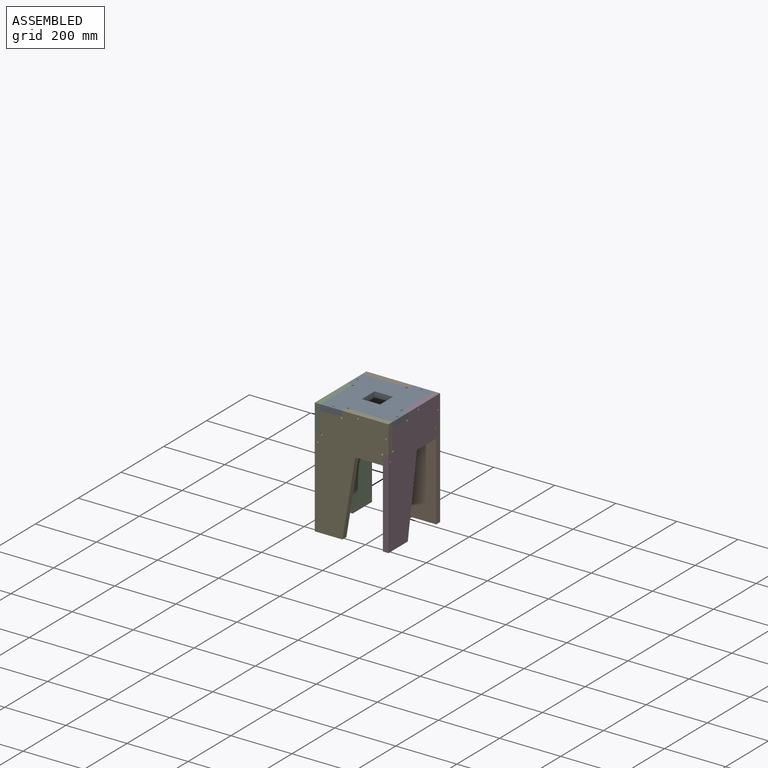
[diagram: assembled view]
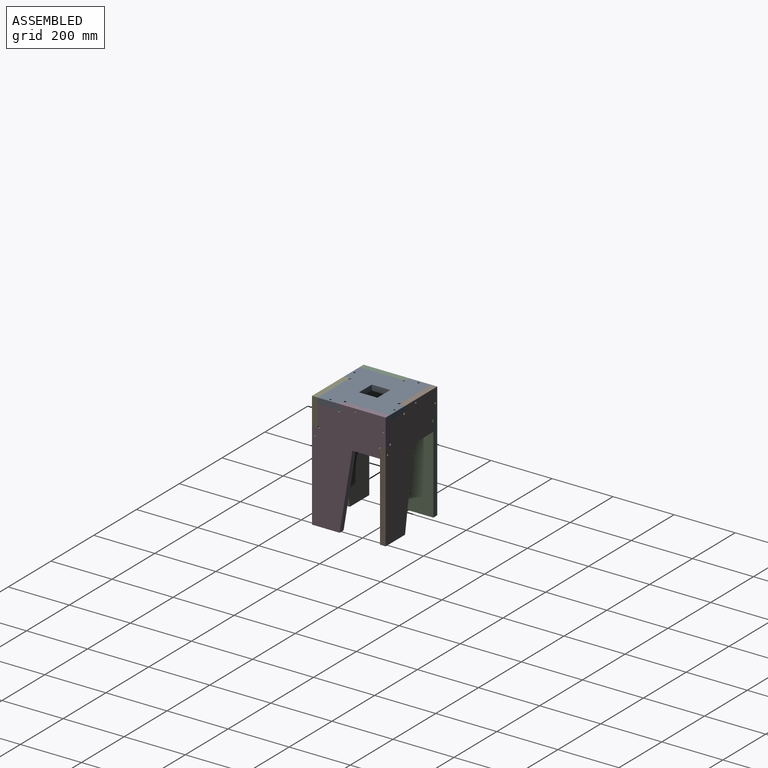
[diagram: assembled view, second angle]
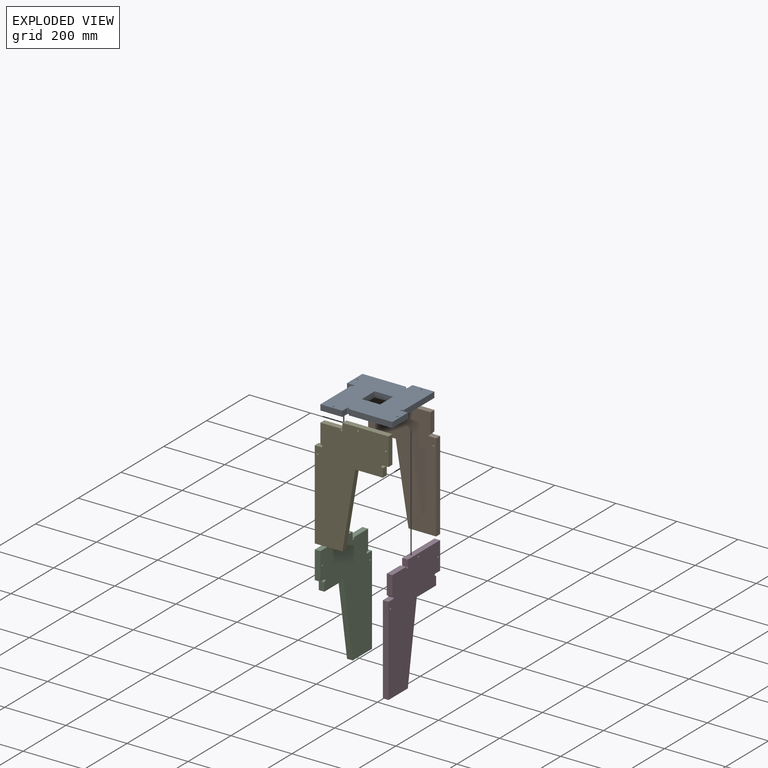
[diagram: exploded view]
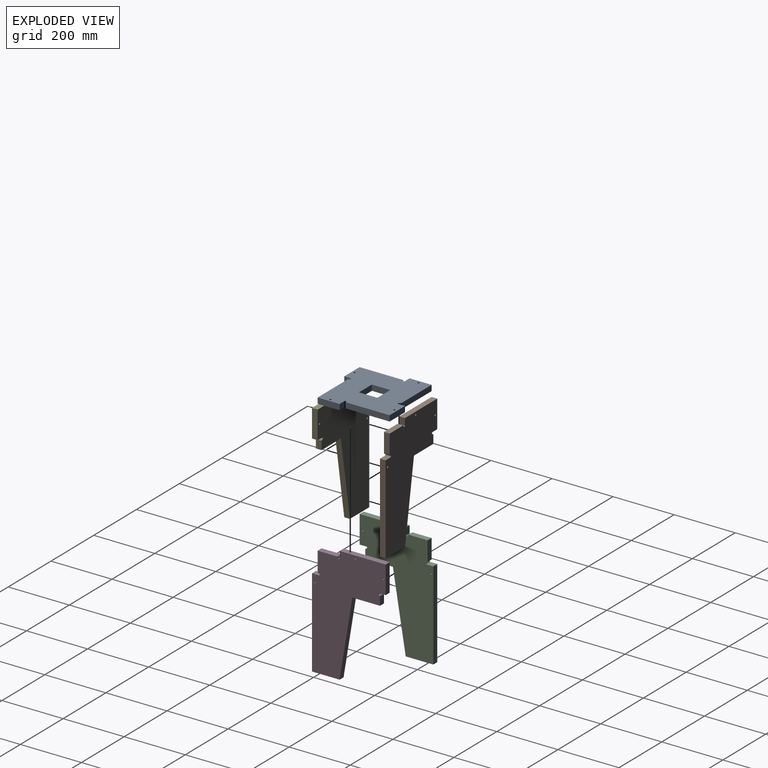
[diagram: exploded view, second angle]
ASSEMBLY  parts=5 mates=4
PART A: 30 faces, bbox 241.3x241.3x18.5 mm
  f0: plane 241.3x241.3mm, normal (0,0,-1), area 43148.5mm2, adj f2,f3,f4,f5,f6,f7,f8,f9
  f1: plane 241.3x241.3mm, normal (0,0,1), area 43148.5mm2, adj f2,f3,f4,f5,f6,f7,f8,f9
  f2: plane 71.99x18.5mm, normal (0,1,0), area 1331.8mm2, adj f0,f1,f12,f15
  f3: plane 71.99x18.5mm, normal (-1,0,0), area 1331.8mm2, adj f0,f1,f14,f17
  f4: plane 71.99x18.5mm, normal (0,-1,0), area 1331.8mm2, adj f0,f1,f11,f16
  f5: plane 71.99x18.5mm, normal (1,0,0), area 1331.8mm2, adj f0,f1,f10,f13
  f6: plane 60.33x18.5mm, normal (0,-1,0), area 1116mm2, adj f0,f1,f7,f9
  f7: plane 60.33x18.5mm, normal (-1,0,0), area 1116mm2, adj f0,f1,f6,f8
  f8: plane 60.33x18.5mm, normal (0,1,0), area 1116mm2, adj f0,f1,f7,f9
  f9: plane 60.33x18.5mm, normal (1,0,0), area 1116mm2, adj f0,f1,f6,f8
  f10: plane 140.91x18.5mm, normal (0,-1,0), area 2606.9mm2, adj f0,f1,f5,f25
  f11: plane 21.8x18.5mm, normal (1,0,0), area 403.3mm2, adj f0,f1,f4,f24
  f12: plane 140.91x18.5mm, normal (1,0,0), area 2606.9mm2, adj f0,f1,f2,f23
  f13: plane 21.8x18.5mm, normal (0,1,0), area 403.3mm2, adj f0,f1,f5,f22
  f14: plane 140.91x18.5mm, normal (0,1,0), area 2606.9mm2, adj f0,f1,f3,f21
  f15: plane 21.8x18.5mm, normal (-1,0,0), area 403.3mm2, adj f0,f1,f2,f20
  f16: plane 140.91x18.5mm, normal (-1,0,0), area 2606.9mm2, adj f0,f1,f4,f19
  f17: plane 21.8x18.5mm, normal (0,-1,0), area 403.3mm2, adj f0,f1,f3,f18
  f18: cylinder r=3.3mm len=18.5mm, axis (0,0,1), area 191.8mm2, adj f0,f1,f17,f19
  f19: cylinder r=3.3mm len=18.5mm, axis (0,0,1), area 95.9mm2, adj f0,f1,f16,f18
  f20: cylinder r=3.3mm len=18.5mm, axis (0,0,1), area 191.8mm2, adj f0,f1,f15,f21
  f21: cylinder r=3.3mm len=18.5mm, axis (0,0,1), area 95.9mm2, adj f0,f1,f14,f20
  f22: cylinder r=3.3mm len=18.5mm, axis (0,0,1), area 191.8mm2, adj f0,f1,f13,f23
  f23: cylinder r=3.3mm len=18.5mm, axis (0,0,1), area 95.9mm2, adj f0,f1,f12,f22
  f24: cylinder r=3.3mm len=18.5mm, axis (0,0,1), area 191.8mm2, adj f0,f1,f11,f25
  f25: cylinder r=3.3mm len=18.5mm, axis (0,0,1), area 95.9mm2, adj f0,f1,f10,f24
  f26: cylinder r=3mm len=18.5mm, axis (0,0,1), area 348.7mm2, adj f0,f1
  f27: cylinder r=3mm len=18.5mm, axis (0,0,1), area 348.7mm2, adj f0,f1
  f28: cylinder r=3mm len=18.5mm, axis (0,0,1), area 348.7mm2, adj f0,f1
  f29: cylinder r=3mm len=18.5mm, axis (0,0,1), area 348.7mm2, adj f0,f1
PART B: 23 faces, bbox 241.3x18.5x381 mm
  f0: plane 381x241.3mm, normal (0,1,0), area 55050.9mm2, adj f2,f3,f4,f5,f6,f7,f8,f9
  f1: plane 381x241.3mm, normal (0,-1,0), area 55050.9mm2, adj f2,f3,f4,f5,f6,f7,f8,f9
  f2: plane 21.8x18.5mm, normal (-1,0,0), area 403.3mm2, adj f0,f1,f13,f15
  f3: plane 62.09x18.5mm, normal (0,0,1), area 1148.6mm2, adj f0,f1,f4,f14
  f4: plane 62.09x18.5mm, normal (-1,0,0), area 1148.6mm2, adj f0,f1,f3,f19
  f5: plane 21.8x18.5mm, normal (0,0,1), area 403.3mm2, adj f0,f1,f6,f18
  f6: plane 290.51x18.5mm, normal (-1,0,0), area 5374.5mm2, adj f0,f1,f5,f7
  f7: plane 90.49x18.5mm, normal (0,0,-1), area 1674mm2, adj f0,f1,f6,f8
  f8: plane 254x41.83mm, normal (0.99,0,-0.16), area 4762.3mm2, adj f0,f1,f7,f9
  f9: plane 90.49x18.5mm, normal (0,0,-1), area 1674mm2, adj f0,f1,f8,f10
  f10: plane 26.61x18.5mm, normal (1,0,0), area 492.3mm2, adj f0,f1,f9,f17
  f11: plane 21.8x18.5mm, normal (0,0,-1), area 403.3mm2, adj f0,f1,f12,f16
  f12: plane 90.49x18.5mm, normal (1,0,0), area 1674mm2, adj f0,f1,f11,f13
  f13: plane 150.81x18.5mm, normal (0,0,1), area 2790mm2, adj f0,f1,f2,f12
  f14: cylinder r=3.3mm len=18.5mm, axis (0,-1,0), area 95.9mm2, adj f0,f1,f3,f15
  f15: cylinder r=3.3mm len=18.5mm, axis (0,-1,0), area 191.8mm2, adj f0,f1,f2,f14
  f16: cylinder r=3.3mm len=18.5mm, axis (0,-1,0), area 191.8mm2, adj f0,f1,f11,f17
  f17: cylinder r=3.3mm len=18.5mm, axis (0,-1,0), area 95.9mm2, adj f0,f1,f10,f16
  f18: cylinder r=3.3mm len=18.5mm, axis (0,-1,0), area 191.8mm2, adj f0,f1,f5,f19
  f19: cylinder r=3.3mm len=18.5mm, axis (0,-1,0), area 95.9mm2, adj f0,f1,f4,f18
  f20: cylinder r=3mm len=18.5mm, axis (0,-1,0), area 348.7mm2, adj f0,f1
  f21: cylinder r=3mm len=18.5mm, axis (0,-1,0), area 348.7mm2, adj f0,f1
  f22: cylinder r=3mm len=18.5mm, axis (0,-1,0), area 348.7mm2, adj f0,f1
PART C: same geometry as B
PART D: same geometry as B
PART E: same geometry as B
PLACE A at identity fixed
PLACE B rot(axis=(0,0,1),180deg) t=(0,0,0)mm
PLACE C rot(axis=(0,0,-1),90deg) t=(0,0,0)mm
PLACE D rot(axis=(0,0,1),90deg) t=(0,0,0)mm
PLACE E at identity
MATE fastened A.f1 <-> D.f13  axis (0,0,1) through (102.15,120.65,0)mm
MATE fastened C.f13 <-> A.f1  axis (0,0,1) through (-102.15,-120.65,0)mm
MATE fastened A.f1 <-> B.f13  axis (0,0,1) through (-120.65,102.15,0)mm
MATE fastened E.f13 <-> A.f1  axis (0,0,1) through (120.65,-102.15,0)mm
